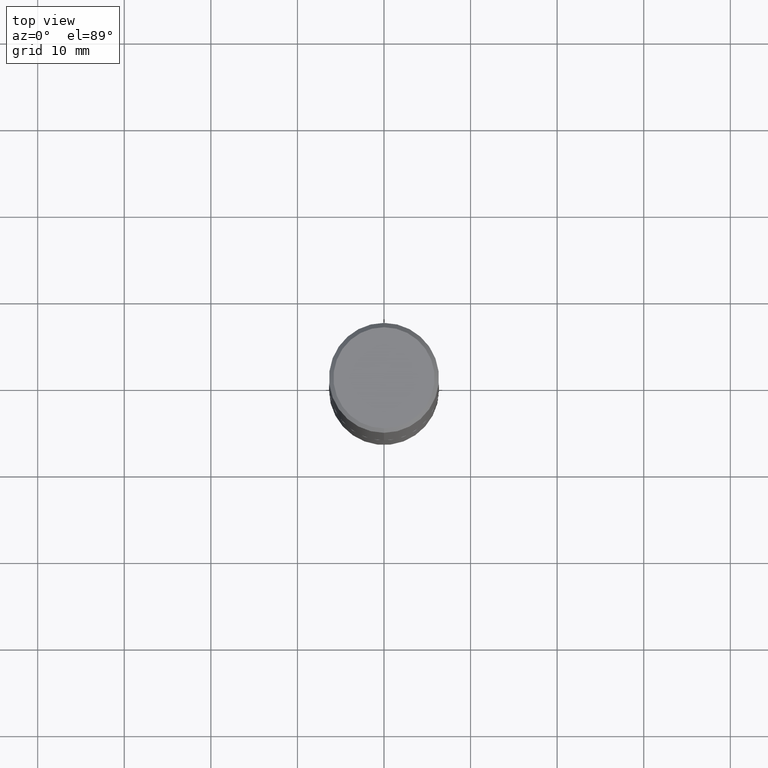
[diagram: clean part render]
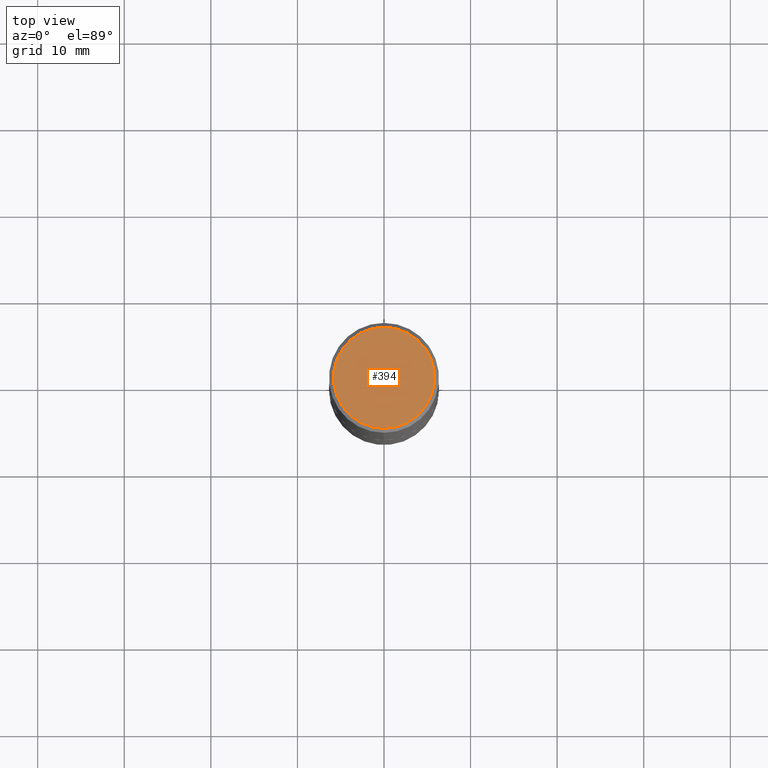
[diagram: same view with one face highlighted and labeled with its STEP entity id]
A machine part, top view. The second image highlights one B-rep face of the part: STEP entity #394.
In plain terms, the highlighted planar face has unit normal (0, -0, -1).
Its self-contained STEP definition (entity closure, byte-faithful):
#3 = AXIS2_PLACEMENT_3D ( 'NONE', #361, #229, #287 ) ;
#17 = PLANE ( 'NONE',  #47 ) ;
#25 = DIRECTION ( 'NONE',  ( -6.982962677686265922E-15, -1.000000000000000000, 3.493471632758652550E-15 ) ) ;
#47 = AXIS2_PLACEMENT_3D ( 'NONE', #115, #309, #278 ) ;
#52 = ORIENTED_EDGE ( 'NONE', *, *, #78, .T. ) ;
#58 = CARTESIAN_POINT ( 'NONE',  ( -1.646519519465166376E-15, -0.2299999999999997047, 1.115557654912385711E-15 ) ) ;
#78 = EDGE_CURVE ( 'NONE', #85, #228, #181, .T. ) ;
#85 = VERTEX_POINT ( 'NONE', #58 ) ;
#105 = CARTESIAN_POINT ( 'NONE',  ( 1.675911042644703182E-15, 0.2299999999999997047, -4.914392961565924424E-16 ) ) ;
#115 = CARTESIAN_POINT ( 'NONE',  ( 1.606081415867839095E-15, 0.2299999999999997047, -6.474688858455407103E-16 ) ) ;
#181 = CIRCLE ( 'NONE', #3, 0.2299999999999997047 ) ;
#220 = CARTESIAN_POINT ( 'NONE',  ( -7.626972843823584403E-45, 1.090169890898625670E-30, 3.120591793778966343E-16 ) ) ;
#228 = VERTEX_POINT ( 'NONE', #105 ) ;
#229 = DIRECTION ( 'NONE',  ( -2.444078991372175563E-29, 3.493471632758652550E-15, 1.000000000000000000 ) ) ;
#235 = EDGE_CURVE ( 'NONE', #228, #85, #347, .T. ) ;
#249 = EDGE_LOOP ( 'NONE', ( #349, #52 ) ) ;
#273 = AXIS2_PLACEMENT_3D ( 'NONE', #220, #322, #25 ) ;
#276 = FACE_OUTER_BOUND ( 'NONE', #249, .T. ) ;
#278 = DIRECTION ( 'NONE',  ( 6.982962677686265922E-15, 1.000000000000000000, -3.493471632758652550E-15 ) ) ;
#287 = DIRECTION ( 'NONE',  ( -6.982962677686265922E-15, -1.000000000000000000, 3.493471632758652550E-15 ) ) ;
#309 = DIRECTION ( 'NONE',  ( 2.444078991372175283E-29, -3.493471632758652550E-15, -1.000000000000000000 ) ) ;
#322 = DIRECTION ( 'NONE',  ( -2.444078991372175563E-29, 3.493471632758652550E-15, 1.000000000000000000 ) ) ;
#347 = CIRCLE ( 'NONE', #273, 0.2299999999999997047 ) ;
#349 = ORIENTED_EDGE ( 'NONE', *, *, #235, .T. ) ;
#361 = CARTESIAN_POINT ( 'NONE',  ( -7.626972843823584403E-45, 1.090169890898625670E-30, 3.120591793778966343E-16 ) ) ;
#394 = ADVANCED_FACE ( 'NONE', ( #276 ), #17, .F. ) ;